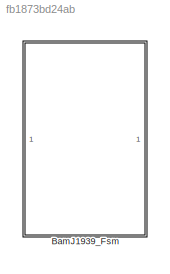
MODEL slx_fb1873bd24ab
KIND library
CONFIG AbsTol = auto
CONFIG EnableMultiTasking = off
CONFIG FixedStep = auto
CONFIG MaxStep = auto
CONFIG MinStep = auto
CONFIG RelTol = 1e-3
CONFIG SampleTimeConstraint = Unconstrained
CONFIG SolverName = VariableStepAuto
CONFIG StartTime = 0.0
CONFIG StopTime = 10.0
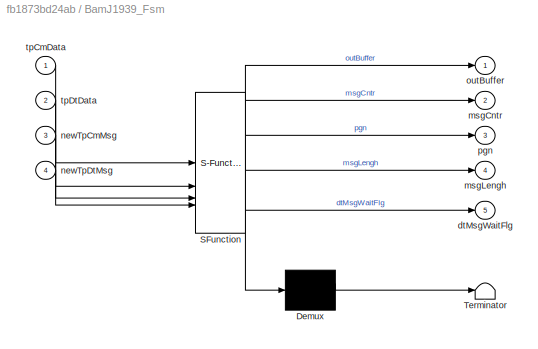
BLOCK [SubSystem] BamJ1939_Fsm
  ErrorFcn = Stateflow.Translate.translate
  PermitHierarchicalResolution = ExplicitOnly
  PortSchema = {"entries":[{"content":{"sides":[{"content":{"connectorIds":["In3","In1","In4","In2"]},"type":"ConnectorPlacement.EquallySpacedRectSide","uuid":"f0437618-7372-46d8-9ab7-ff8929e6fb67"},{"content":{"connectorIds":["Out2","Out1","Out3","Out4","Out5"],"side":"RIGHT"},"type":"ConnectorPlacement.EquallySpacedRectSide","uuid":"0536630b-4cc4-4e97-9664-ff8fdcddfe97"},{"content":{"side":"TOP"},"type":"Conne...<+268ch>
  SFBlockType = Chart
  TreatAsAtomicUnit = on
BLOCK [Demux] BamJ1939_Fsm/ Demux 
  Outputs = 1
BLOCK [S-Function] BamJ1939_Fsm/ SFunction 
  EnableBusSupport = on
  FunctionName = sf_sfun
  PortCounts = [4 6]
  SFcnIsStateOwnerBlock = off
  SFunctionDeploymentMode = off
  Tag = Stateflow S-Function 4
BLOCK [Terminator] BamJ1939_Fsm/ Terminator 
BLOCK [Outport] BamJ1939_Fsm/dtMsgWaitFlg
  Port = 5
BLOCK [Outport] BamJ1939_Fsm/msgCntr
  Port = 2
BLOCK [Outport] BamJ1939_Fsm/msgLengh
  Port = 4
BLOCK [Inport] BamJ1939_Fsm/newTpCmMsg
  Port = 3
BLOCK [Inport] BamJ1939_Fsm/newTpDtMsg
  Port = 4
BLOCK [Outport] BamJ1939_Fsm/outBuffer
BLOCK [Outport] BamJ1939_Fsm/pgn
  Port = 3
BLOCK [Inport] BamJ1939_Fsm/tpCmData
BLOCK [Inport] BamJ1939_Fsm/tpDtData
  Port = 2
CHART BamJ1939_Fsm states=7 transitions=13
  STATE_LABEL 'buff = clearBuffer(buff, buffSize)'
  STATE_LABEL 'SCRIPT:\nfunction buff = clearBuffer(buff, buffSize)\n    arguments\n        buff (:,1) uint8\n        buffSize uint16\n    end\n    for buffIterator = 1:buffSize\n        buff(buffIterator) = uint8(0xFF);\n    end\nend\n\n \n'
  STATE_LABEL 'CM_WAIT\nen:\npgnOfPackets = 0x4FFFF;\ntotalMsgSize = 0;\ntotalPackNum = 0;\nnextPacketNum = 0;\nmsgCmplt = false;\ndtMsgWaitFlg = false;\n'
  STATE_LABEL 'TP_DATA_READY\nen:\ndtMsgWaitFlg = false;\nmsgCmplt = false;\nmsgCntr = msgCntr + uint32(1); % New data\nmsgLengh = totalMsgSize;'
  STATE_LABEL 'TP_TIMEOUT\nen:\ndtMsgWaitFlg = false;\noutBuffer = clearBuffer(outBuffer, buffLengh);'
  STATE_LABEL 'TP_ERROR\nen:\ndtMsgWaitFlg = false;'
  STATE_LABEL 'BAM_INIT\nen:\nmsgLengh = 0;\ntotalMsgSize = uint16(tpCmData(2)) + bitshift(uint16(tpCmData(3)), 8);\ntotalPackNum = tpCmData(4);\npgnOfPackets = uint32(tpCmData(6)) + bitshift(uint32(tpCmData(7)), 8) + ...\n    bitshift(uint32(tpCmData(8)), 16)\npgn = pgnOfPackets;\ndtMsgWaitFlg = true;'
  STATE_LABEL 'BAM_DT_COLLECT\nen:\noffsetData = 7 * (uint16(tpDtData(1)) - 1);\ni = uint16(1);\nif(tpDtData(1) == totalPackNum)\n    for i = uint16(1):uint16(7 - uint16(mod(uint16(tpDtData(1)*7), totalMsgSize)))\n        outBuffer(i + offsetData) = tpDtData(i+1);\n    end\n    msgCmplt = true;\nelse\n    for i = uint16(1):uint16(7)\n        outBuffer(i + offsetData) = tpDtData(i+1);\n    end\n    nextPacketNum = tpDtData(1)...<+9ch>'
CHART  states=0 transitions=0
